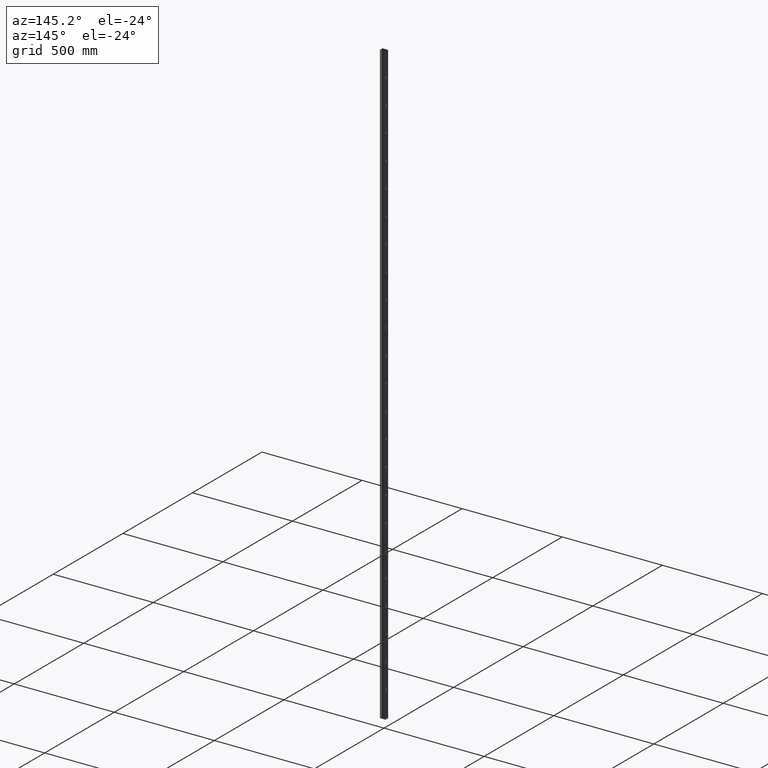
[diagram: clean part render]
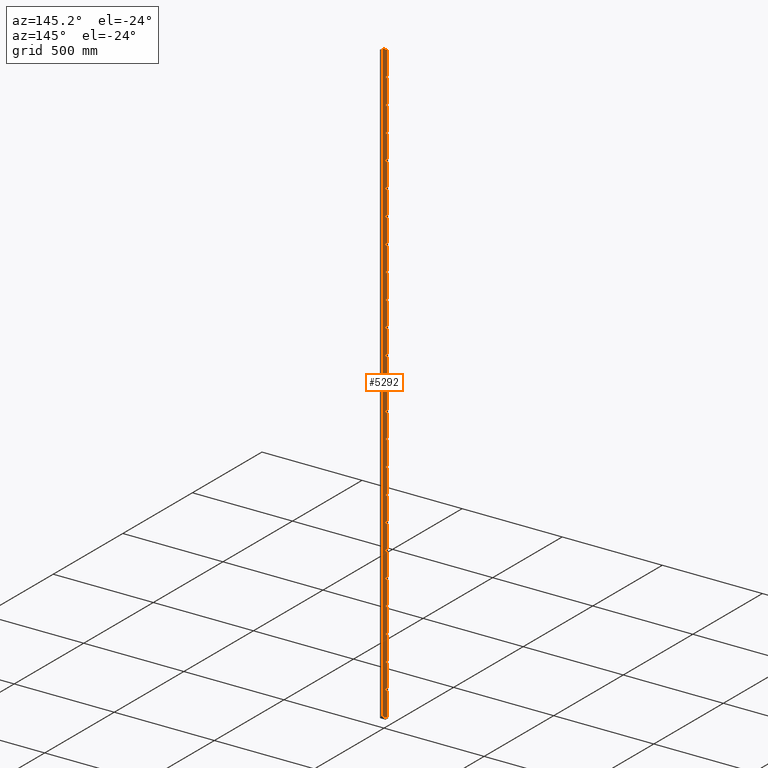
[diagram: same view with one face highlighted and labeled with its STEP entity id]
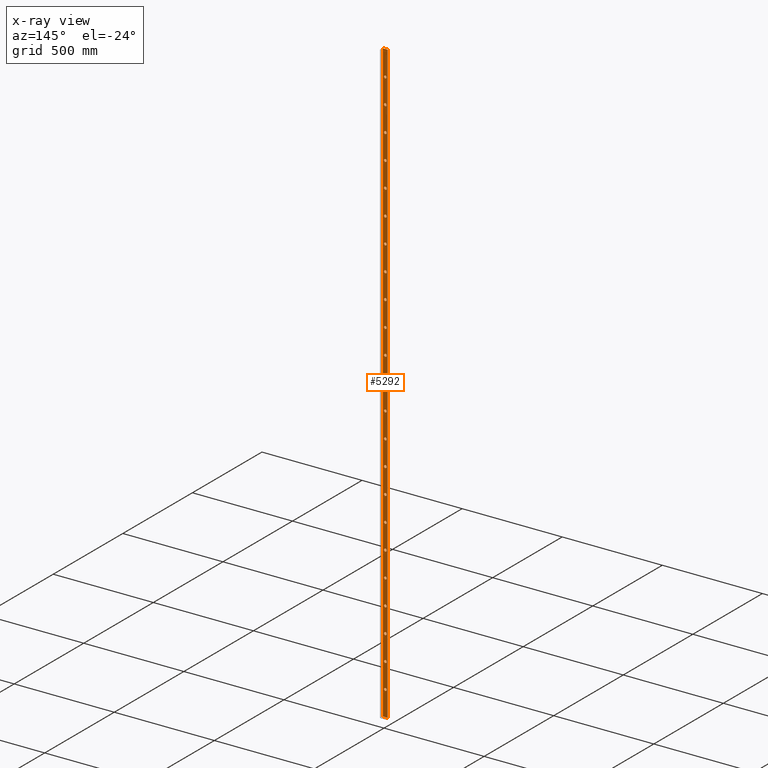
[diagram: x-ray of the same camera — body ghosted, the highlighted face saturated]
A machine part, auxiliary view. The second image highlights one B-rep face of the part: STEP entity #5292.
The next image is the same camera in x-ray: the body ghosted, the highlighted face saturated — about 0% of this face is hidden behind the body in this view.
In plain terms, the highlighted planar face has unit normal (0, -1, 0).
Its self-contained STEP definition (entity closure, byte-faithful):
#17 = EDGE_LOOP ( 'NONE', ( #14544 ) ) ;
#97 = CARTESIAN_POINT ( 'NONE',  ( 1.047444401652940017E-11, 10.00000000000000178, 125.0000000000000000 ) ) ;
#144 = DIRECTION ( 'NONE',  ( 0.000000000000000000, 0.000000000000000000, 1.000000000000000000 ) ) ;
#157 = DIRECTION ( 'NONE',  ( 0.000000000000000000, 0.000000000000000000, 1.000000000000000000 ) ) ;
#161 = VECTOR ( 'NONE', #14068, 1000.000000000000000 ) ;
#194 = CARTESIAN_POINT ( 'NONE',  ( 9.165138514463224540E-12, 10.00000000000000178, -250.0000000000000000 ) ) ;
#247 = DIRECTION ( 'NONE',  ( 0.000000000000000000, 1.000000000000000000, 0.000000000000000000 ) ) ;
#295 = FACE_BOUND ( 'NONE', #11102, .T. ) ;
#353 = DIRECTION ( 'NONE',  ( 0.000000000000000000, 1.000000000000000000, 0.000000000000000000 ) ) ;
#402 = ORIENTED_EDGE ( 'NONE', *, *, #13773, .F. ) ;
#432 = ORIENTED_EDGE ( 'NONE', *, *, #8594, .F. ) ;
#540 = CARTESIAN_POINT ( 'NONE',  ( 1.265661985330635901E-11, 10.00000000000000178, 750.0000000000000000 ) ) ;
#551 = CARTESIAN_POINT ( 'NONE',  ( 6.982962677686266509E-12, 10.00000000000000178, -868.5000000000000000 ) ) ;
#662 = VERTEX_POINT ( 'NONE', #4116 ) ;
#724 = AXIS2_PLACEMENT_3D ( 'NONE', #740, #6455, #5303 ) ;
#740 = CARTESIAN_POINT ( 'NONE',  ( 1.003800884917400775E-11, 10.00000000000000178, 0.000000000000000000 ) ) ;
#858 = CARTESIAN_POINT ( 'NONE',  ( 9.601573681818616954E-12, 10.00000000000000178, -125.0000000000000000 ) ) ;
#866 = CARTESIAN_POINT ( 'NONE',  ( 1.352949018801714222E-11, 10.00000000000000178, 1006.500000000000000 ) ) ;
#896 = DIRECTION ( 'NONE',  ( 0.000000000000000000, 1.000000000000000000, 0.000000000000000000 ) ) ;
#916 = VERTEX_POINT ( 'NONE', #866 ) ;
#930 = AXIS2_PLACEMENT_3D ( 'NONE', #11535, #353, #9279 ) ;
#943 = DIRECTION ( 'NONE',  ( 0.000000000000000000, 1.000000000000000000, 0.000000000000000000 ) ) ;
#949 = DIRECTION ( 'NONE',  ( 0.000000000000000000, 0.000000000000000000, 1.000000000000000000 ) ) ;
#990 = EDGE_LOOP ( 'NONE', ( #4304 ) ) ;
#1047 = AXIS2_PLACEMENT_3D ( 'NONE', #14168, #6496, #7629 ) ;
#1181 = CARTESIAN_POINT ( 'NONE',  ( -12.00000000000001421, 10.00000000000000178, 1500.000000000000000 ) ) ;
#1209 = FACE_BOUND ( 'NONE', #4515, .T. ) ;
#1223 = CIRCLE ( 'NONE', #4036, 6.499999999999728217 ) ;
#1224 = DIRECTION ( 'NONE',  ( -1.000000000000000000, -0.000000000000000000, -0.000000000000000000 ) ) ;
#1239 = DIRECTION ( 'NONE',  ( 0.000000000000000000, 0.000000000000000000, 1.000000000000000000 ) ) ;
#1242 = AXIS2_PLACEMENT_3D ( 'NONE', #9067, #4592, #11464 ) ;
#1550 = FACE_BOUND ( 'NONE', #9727, .T. ) ;
#1632 = VERTEX_POINT ( 'NONE', #2842 ) ;
#1709 = DIRECTION ( 'NONE',  ( 0.000000000000000000, 1.000000000000000000, 0.000000000000000000 ) ) ;
#1899 = FACE_BOUND ( 'NONE', #5653, .T. ) ;
#1934 = VERTEX_POINT ( 'NONE', #551 ) ;
#1988 = VERTEX_POINT ( 'NONE', #3972 ) ;
#2014 = CARTESIAN_POINT ( 'NONE',  ( 1.178374951859557579E-11, 10.00000000000000178, 506.4999999999999432 ) ) ;
#2037 = EDGE_CURVE ( 'NONE', #1934, #1934, #9865, .T. ) ;
#2048 = DIRECTION ( 'NONE',  ( 0.000000000000000000, 0.000000000000000000, 1.000000000000000000 ) ) ;
#2053 = VERTEX_POINT ( 'NONE', #14131 ) ;
#2058 = DIRECTION ( 'NONE',  ( 0.000000000000000000, 1.000000000000000000, 0.000000000000000000 ) ) ;
#2077 = ORIENTED_EDGE ( 'NONE', *, *, #4723, .T. ) ;
#2113 = CIRCLE ( 'NONE', #13162, 6.500000000000005329 ) ;
#2119 = EDGE_CURVE ( 'NONE', #5787, #5787, #5446, .T. ) ;
#2173 = ORIENTED_EDGE ( 'NONE', *, *, #9749, .F. ) ;
#2307 = DIRECTION ( 'NONE',  ( 0.000000000000000000, 1.000000000000000000, 0.000000000000000000 ) ) ;
#2316 = CARTESIAN_POINT ( 'NONE',  ( 11.99999999999998934, 10.00000000000000178, 1500.000000000000000 ) ) ;
#2341 = VERTEX_POINT ( 'NONE', #12901 ) ;
#2395 = AXIS2_PLACEMENT_3D ( 'NONE', #97, #7129, #11747 ) ;
#2504 = EDGE_CURVE ( 'NONE', #662, #662, #5963, .T. ) ;
#2533 = DIRECTION ( 'NONE',  ( 0.000000000000000000, 0.000000000000000000, 1.000000000000000000 ) ) ;
#2608 = FACE_BOUND ( 'NONE', #12069, .T. ) ;
#2664 = EDGE_CURVE ( 'NONE', #11216, #11216, #7210, .T. ) ;
#2732 = ORIENTED_EDGE ( 'NONE', *, *, #6259, .T. ) ;
#2745 = EDGE_LOOP ( 'NONE', ( #3773 ) ) ;
#2815 = DIRECTION ( 'NONE',  ( 0.000000000000000000, 1.000000000000000000, 0.000000000000000000 ) ) ;
#2842 = CARTESIAN_POINT ( 'NONE',  ( 1.483879569008331623E-11, 10.00000000000000178, 1381.499999999999773 ) ) ;
#2895 = CARTESIAN_POINT ( 'NONE',  ( 8.728703347107833742E-12, 10.00000000000000178, -368.5000000000000000 ) ) ;
#2923 = DIRECTION ( 'NONE',  ( 0.000000000000000000, 1.000000000000000000, 0.000000000000000000 ) ) ;
#3029 = AXIS2_PLACEMENT_3D ( 'NONE', #194, #3534, #157 ) ;
#3085 = ORIENTED_EDGE ( 'NONE', *, *, #12172, .F. ) ;
#3185 = AXIS2_PLACEMENT_3D ( 'NONE', #858, #2058, #949 ) ;
#3190 = CARTESIAN_POINT ( 'NONE',  ( 1.047444401652940017E-11, 10.00000000000000178, 131.4999999999999432 ) ) ;
#3339 = EDGE_CURVE ( 'NONE', #12623, #12623, #2113, .T. ) ;
#3353 = CIRCLE ( 'NONE', #13649, 6.499999999999839240 ) ;
#3418 = DIRECTION ( 'NONE',  ( 0.000000000000000000, 0.000000000000000000, 1.000000000000000000 ) ) ;
#3534 = DIRECTION ( 'NONE',  ( 0.000000000000000000, 1.000000000000000000, 0.000000000000000000 ) ) ;
#3558 = EDGE_CURVE ( 'NONE', #8718, #10421, #12995, .T. ) ;
#3675 = CIRCLE ( 'NONE', #9497, 6.499999999999950262 ) ;
#3761 = VERTEX_POINT ( 'NONE', #7099 ) ;
#3773 = ORIENTED_EDGE ( 'NONE', *, *, #2664, .F. ) ;
#3800 = EDGE_CURVE ( 'NONE', #4338, #4338, #3353, .T. ) ;
#3830 = FACE_BOUND ( 'NONE', #13633, .T. ) ;
#3888 = AXIS2_PLACEMENT_3D ( 'NONE', #9532, #2815, #5801 ) ;
#3921 = CARTESIAN_POINT ( 'NONE',  ( 6.546527510330874902E-12, 10.00000000000000178, -993.5000000000001137 ) ) ;
#3924 = ORIENTED_EDGE ( 'NONE', *, *, #9558, .F. ) ;
#3928 = ORIENTED_EDGE ( 'NONE', *, *, #3558, .F. ) ;
#3950 = AXIS2_PLACEMENT_3D ( 'NONE', #7635, #896, #2048 ) ;
#3972 = CARTESIAN_POINT ( 'NONE',  ( 1.222018468595096659E-11, 10.00000000000000178, 631.5000000000000000 ) ) ;
#4019 = CARTESIAN_POINT ( 'NONE',  ( 9.601573681818616954E-12, 10.00000000000000178, -118.5000000000000568 ) ) ;
#4036 = AXIS2_PLACEMENT_3D ( 'NONE', #13597, #12374, #12517 ) ;
#4093 = VERTEX_POINT ( 'NONE', #7710 ) ;
#4116 = CARTESIAN_POINT ( 'NONE',  ( 1.134731435124018338E-11, 10.00000000000000178, 381.5000000000000000 ) ) ;
#4128 = ORIENTED_EDGE ( 'NONE', *, *, #2037, .F. ) ;
#4177 = FACE_BOUND ( 'NONE', #10087, .T. ) ;
#4265 = ORIENTED_EDGE ( 'NONE', *, *, #8980, .F. ) ;
#4304 = ORIENTED_EDGE ( 'NONE', *, *, #12926, .F. ) ;
#4338 = VERTEX_POINT ( 'NONE', #3921 ) ;
#4444 = ORIENTED_EDGE ( 'NONE', *, *, #5799, .F. ) ;
#4477 = VERTEX_POINT ( 'NONE', #8672 ) ;
#4515 = EDGE_LOOP ( 'NONE', ( #12195 ) ) ;
#4521 = ORIENTED_EDGE ( 'NONE', *, *, #8311, .F. ) ;
#4531 = FACE_BOUND ( 'NONE', #17, .T. ) ;
#4546 = LINE ( 'NONE', #12422, #5401 ) ;
#4592 = DIRECTION ( 'NONE',  ( 0.000000000000000000, 1.000000000000000000, 0.000000000000000000 ) ) ;
#4616 = VERTEX_POINT ( 'NONE', #3190 ) ;
#4723 = EDGE_CURVE ( 'NONE', #4477, #10421, #4546, .T. ) ;
#4764 = EDGE_CURVE ( 'NONE', #2053, #2053, #11921, .T. ) ;
#4869 = VECTOR ( 'NONE', #12333, 1000.000000000000000 ) ;
#4882 = FACE_BOUND ( 'NONE', #7111, .T. ) ;
#4961 = VERTEX_POINT ( 'NONE', #7413 ) ;
#5085 = CARTESIAN_POINT ( 'NONE',  ( 1.091087918388479097E-11, 10.00000000000000178, 256.5000000000000000 ) ) ;
#5190 = EDGE_CURVE ( 'NONE', #1632, #1632, #1223, .T. ) ;
#5250 = DIRECTION ( 'NONE',  ( 0.000000000000000000, 1.000000000000000000, 0.000000000000000000 ) ) ;
#5292 = ADVANCED_FACE ( 'NONE', ( #11198, #6458, #4531, #13503, #4882, #10345, #7525, #7164, #1550, #13139, #6821, #295, #10669, #1899, #10172, #2608, #4177, #3830, #12627, #7353, #1209, #12080, #12792, #7709 ), #7909, .F. ) ;
#5303 = DIRECTION ( 'NONE',  ( 0.000000000000000000, 0.000000000000000000, 1.000000000000000000 ) ) ;
#5357 = ORIENTED_EDGE ( 'NONE', *, *, #3339, .F. ) ;
#5392 = CIRCLE ( 'NONE', #3888, 6.499999999999950262 ) ;
#5401 = VECTOR ( 'NONE', #1224, 1000.000000000000000 ) ;
#5446 = CIRCLE ( 'NONE', #9767, 6.500000000000005329 ) ;
#5475 = EDGE_CURVE ( 'NONE', #2341, #2341, #12450, .T. ) ;
#5540 = EDGE_LOOP ( 'NONE', ( #4128 ) ) ;
#5580 = CIRCLE ( 'NONE', #930, 6.500000000000005329 ) ;
#5590 = EDGE_CURVE ( 'NONE', #6906, #6906, #3675, .T. ) ;
#5653 = EDGE_LOOP ( 'NONE', ( #4265 ) ) ;
#5690 = EDGE_CURVE ( 'NONE', #4961, #4961, #5580, .T. ) ;
#5734 = DIRECTION ( 'NONE',  ( 0.000000000000000000, -1.000000000000000000, 0.000000000000000000 ) ) ;
#5742 = DIRECTION ( 'NONE',  ( 0.000000000000000000, 1.000000000000000000, 0.000000000000000000 ) ) ;
#5749 = CIRCLE ( 'NONE', #9372, 6.499999999999728217 ) ;
#5787 = VERTEX_POINT ( 'NONE', #5085 ) ;
#5799 = EDGE_CURVE ( 'NONE', #12364, #12364, #11186, .T. ) ;
#5801 = DIRECTION ( 'NONE',  ( 0.000000000000000000, 0.000000000000000000, 1.000000000000000000 ) ) ;
#5963 = CIRCLE ( 'NONE', #6466, 6.500000000000005329 ) ;
#6007 = VERTEX_POINT ( 'NONE', #2014 ) ;
#6017 = ORIENTED_EDGE ( 'NONE', *, *, #5590, .F. ) ;
#6062 = ORIENTED_EDGE ( 'NONE', *, *, #5475, .F. ) ;
#6259 = EDGE_CURVE ( 'NONE', #3761, #4477, #12616, .T. ) ;
#6455 = DIRECTION ( 'NONE',  ( 0.000000000000000000, 1.000000000000000000, 0.000000000000000000 ) ) ;
#6458 = FACE_BOUND ( 'NONE', #14332, .T. ) ;
#6466 = AXIS2_PLACEMENT_3D ( 'NONE', #13658, #8137, #6917 ) ;
#6496 = DIRECTION ( 'NONE',  ( 0.000000000000000000, 1.000000000000000000, 0.000000000000000000 ) ) ;
#6547 = DIRECTION ( 'NONE',  ( 0.000000000000000000, 0.000000000000000000, 1.000000000000000000 ) ) ;
#6573 = EDGE_LOOP ( 'NONE', ( #13848 ) ) ;
#6646 = CARTESIAN_POINT ( 'NONE',  ( 1.396592535537253302E-11, 10.00000000000000178, 1125.000000000000000 ) ) ;
#6716 = EDGE_LOOP ( 'NONE', ( #13768 ) ) ;
#6791 = ORIENTED_EDGE ( 'NONE', *, *, #8687, .F. ) ;
#6821 = FACE_BOUND ( 'NONE', #6716, .T. ) ;
#6906 = VERTEX_POINT ( 'NONE', #11779 ) ;
#6917 = DIRECTION ( 'NONE',  ( 0.000000000000000000, 0.000000000000000000, 1.000000000000000000 ) ) ;
#7099 = CARTESIAN_POINT ( 'NONE',  ( 11.99999999999998934, 10.00000000000000178, 1500.000000000000000 ) ) ;
#7111 = EDGE_LOOP ( 'NONE', ( #6017 ) ) ;
#7129 = DIRECTION ( 'NONE',  ( 0.000000000000000000, 1.000000000000000000, 0.000000000000000000 ) ) ;
#7164 = FACE_BOUND ( 'NONE', #8498, .T. ) ;
#7210 = CIRCLE ( 'NONE', #3185, 6.499999999999950262 ) ;
#7253 = CARTESIAN_POINT ( 'NONE',  ( -12.00000000000001421, 10.00000000000000000, -1500.000000000000000 ) ) ;
#7287 = EDGE_LOOP ( 'NONE', ( #3085 ) ) ;
#7290 = DIRECTION ( 'NONE',  ( 0.000000000000000000, 0.000000000000000000, 1.000000000000000000 ) ) ;
#7353 = FACE_BOUND ( 'NONE', #9968, .T. ) ;
#7413 = CARTESIAN_POINT ( 'NONE',  ( 8.292268179752441328E-12, 10.00000000000000178, -493.5000000000000000 ) ) ;
#7525 = FACE_BOUND ( 'NONE', #12772, .T. ) ;
#7607 = VERTEX_POINT ( 'NONE', #12218 ) ;
#7622 = DIRECTION ( 'NONE',  ( 0.000000000000000000, 1.000000000000000000, 0.000000000000000000 ) ) ;
#7629 = DIRECTION ( 'NONE',  ( 0.000000000000000000, 0.000000000000000000, 1.000000000000000000 ) ) ;
#7635 = CARTESIAN_POINT ( 'NONE',  ( 7.419397845041658115E-12, 10.00000000000000178, -750.0000000000000000 ) ) ;
#7709 = FACE_OUTER_BOUND ( 'NONE', #9058, .T. ) ;
#7710 = CARTESIAN_POINT ( 'NONE',  ( 5.237222008264700891E-12, 10.00000000000000178, -1368.500000000000227 ) ) ;
#7791 = EDGE_LOOP ( 'NONE', ( #13863 ) ) ;
#7796 = VERTEX_POINT ( 'NONE', #8780 ) ;
#7841 = CARTESIAN_POINT ( 'NONE',  ( 1.309305502066174980E-11, 10.00000000000000178, 875.0000000000000000 ) ) ;
#7909 = PLANE ( 'NONE',  #9321 ) ;
#7925 = CIRCLE ( 'NONE', #8580, 6.499999999999728217 ) ;
#8018 = ORIENTED_EDGE ( 'NONE', *, *, #5690, .F. ) ;
#8062 = CIRCLE ( 'NONE', #2395, 6.499999999999950262 ) ;
#8137 = DIRECTION ( 'NONE',  ( 0.000000000000000000, 1.000000000000000000, 0.000000000000000000 ) ) ;
#8185 = CIRCLE ( 'NONE', #9415, 6.499999999999950262 ) ;
#8271 = LINE ( 'NONE', #9597, #8798 ) ;
#8305 = VERTEX_POINT ( 'NONE', #14190 ) ;
#8311 = EDGE_CURVE ( 'NONE', #1988, #1988, #8185, .T. ) ;
#8452 = CARTESIAN_POINT ( 'NONE',  ( 6.982962677686266509E-12, 10.00000000000000178, -875.0000000000000000 ) ) ;
#8498 = EDGE_LOOP ( 'NONE', ( #2173 ) ) ;
#8561 = CIRCLE ( 'NONE', #8676, 6.499999999999728217 ) ;
#8567 = CARTESIAN_POINT ( 'NONE',  ( 6.546527510330874902E-12, 10.00000000000000178, -1000.000000000000000 ) ) ;
#8574 = DIRECTION ( 'NONE',  ( 0.000000000000000000, 1.000000000000000000, 0.000000000000000000 ) ) ;
#8580 = AXIS2_PLACEMENT_3D ( 'NONE', #9216, #247, #2533 ) ;
#8585 = CARTESIAN_POINT ( 'NONE',  ( 1.265661985330635901E-11, 10.00000000000000178, 756.5000000000000000 ) ) ;
#8594 = EDGE_CURVE ( 'NONE', #13763, #13763, #10613, .T. ) ;
#8672 = CARTESIAN_POINT ( 'NONE',  ( 11.99999999999998934, 10.00000000000000178, -1500.000000000000000 ) ) ;
#8676 = AXIS2_PLACEMENT_3D ( 'NONE', #6646, #14518, #3418 ) ;
#8687 = EDGE_CURVE ( 'NONE', #8305, #8305, #13626, .T. ) ;
#8718 = VERTEX_POINT ( 'NONE', #13039 ) ;
#8780 = CARTESIAN_POINT ( 'NONE',  ( 6.110092342975483296E-12, 10.00000000000000178, -1118.500000000000227 ) ) ;
#8798 = VECTOR ( 'NONE', #11572, 1000.000000000000000 ) ;
#8850 = AXIS2_PLACEMENT_3D ( 'NONE', #540, #1709, #9551 ) ;
#8980 = EDGE_CURVE ( 'NONE', #12865, #12865, #13887, .T. ) ;
#9058 = EDGE_LOOP ( 'NONE', ( #2077, #3928, #3924, #2732 ) ) ;
#9067 = CARTESIAN_POINT ( 'NONE',  ( 7.855833012397050529E-12, 10.00000000000000178, -625.0000000000000000 ) ) ;
#9216 = CARTESIAN_POINT ( 'NONE',  ( 6.110092342975483296E-12, 10.00000000000000178, -1125.000000000000000 ) ) ;
#9279 = DIRECTION ( 'NONE',  ( 0.000000000000000000, 0.000000000000000000, 1.000000000000000000 ) ) ;
#9321 = AXIS2_PLACEMENT_3D ( 'NONE', #1181, #5734, #10214 ) ;
#9372 = AXIS2_PLACEMENT_3D ( 'NONE', #10329, #13716, #144 ) ;
#9415 = AXIS2_PLACEMENT_3D ( 'NONE', #13603, #5742, #1239 ) ;
#9447 = CARTESIAN_POINT ( 'NONE',  ( 1.440236052272792382E-11, 10.00000000000000178, 1250.000000000000000 ) ) ;
#9497 = AXIS2_PLACEMENT_3D ( 'NONE', #7841, #943, #6547 ) ;
#9523 = EDGE_CURVE ( 'NONE', #7796, #7796, #7925, .T. ) ;
#9532 = CARTESIAN_POINT ( 'NONE',  ( 1.352949018801714222E-11, 10.00000000000000178, 1000.000000000000000 ) ) ;
#9551 = DIRECTION ( 'NONE',  ( 0.000000000000000000, 0.000000000000000000, 1.000000000000000000 ) ) ;
#9558 = EDGE_CURVE ( 'NONE', #3761, #8718, #8271, .T. ) ;
#9597 = CARTESIAN_POINT ( 'NONE',  ( -12.00000000000001421, 10.00000000000000178, 1500.000000000000000 ) ) ;
#9673 = AXIS2_PLACEMENT_3D ( 'NONE', #8452, #5250, #10700 ) ;
#9727 = EDGE_LOOP ( 'NONE', ( #10104 ) ) ;
#9749 = EDGE_CURVE ( 'NONE', #6007, #6007, #10212, .T. ) ;
#9767 = AXIS2_PLACEMENT_3D ( 'NONE', #14362, #7622, #14513 ) ;
#9780 = CIRCLE ( 'NONE', #13144, 6.499999999999728217 ) ;
#9865 = CIRCLE ( 'NONE', #9673, 6.499999999999950262 ) ;
#9968 = EDGE_LOOP ( 'NONE', ( #14113 ) ) ;
#10083 = VERTEX_POINT ( 'NONE', #14440 ) ;
#10087 = EDGE_LOOP ( 'NONE', ( #12793 ) ) ;
#10104 = ORIENTED_EDGE ( 'NONE', *, *, #2504, .F. ) ;
#10172 = FACE_BOUND ( 'NONE', #12771, .T. ) ;
#10212 = CIRCLE ( 'NONE', #1047, 6.499999999999950262 ) ;
#10214 = DIRECTION ( 'NONE',  ( 0.000000000000000000, -0.000000000000000000, -1.000000000000000000 ) ) ;
#10329 = CARTESIAN_POINT ( 'NONE',  ( 5.237222008264700891E-12, 10.00000000000000178, -1375.000000000000000 ) ) ;
#10345 = FACE_BOUND ( 'NONE', #13670, .T. ) ;
#10421 = VERTEX_POINT ( 'NONE', #7253 ) ;
#10493 = CARTESIAN_POINT ( 'NONE',  ( -12.00000000000001421, 10.00000000000000000, 1500.000000000000000 ) ) ;
#10613 = CIRCLE ( 'NONE', #8850, 6.499999999999950262 ) ;
#10669 = FACE_BOUND ( 'NONE', #2745, .T. ) ;
#10700 = DIRECTION ( 'NONE',  ( 0.000000000000000000, 0.000000000000000000, 1.000000000000000000 ) ) ;
#11102 = EDGE_LOOP ( 'NONE', ( #6062 ) ) ;
#11124 = CARTESIAN_POINT ( 'NONE',  ( 8.728703347107833742E-12, 10.00000000000000178, -375.0000000000000000 ) ) ;
#11186 = CIRCLE ( 'NONE', #3950, 6.499999999999950262 ) ;
#11198 = FACE_BOUND ( 'NONE', #6573, .T. ) ;
#11216 = VERTEX_POINT ( 'NONE', #4019 ) ;
#11403 = AXIS2_PLACEMENT_3D ( 'NONE', #14224, #8574, #13090 ) ;
#11464 = DIRECTION ( 'NONE',  ( 0.000000000000000000, 0.000000000000000000, 1.000000000000000000 ) ) ;
#11535 = CARTESIAN_POINT ( 'NONE',  ( 8.292268179752441328E-12, 10.00000000000000178, -500.0000000000000000 ) ) ;
#11572 = DIRECTION ( 'NONE',  ( -1.000000000000000000, -0.000000000000000000, -0.000000000000000000 ) ) ;
#11747 = DIRECTION ( 'NONE',  ( 0.000000000000000000, 0.000000000000000000, 1.000000000000000000 ) ) ;
#11779 = CARTESIAN_POINT ( 'NONE',  ( 1.309305502066174980E-11, 10.00000000000000178, 881.5000000000000000 ) ) ;
#11921 = CIRCLE ( 'NONE', #1242, 6.499999999999950262 ) ;
#12020 = CARTESIAN_POINT ( 'NONE',  ( 9.165138514463224540E-12, 10.00000000000000178, -243.5000000000000284 ) ) ;
#12069 = EDGE_LOOP ( 'NONE', ( #8018 ) ) ;
#12080 = FACE_BOUND ( 'NONE', #14320, .T. ) ;
#12172 = EDGE_CURVE ( 'NONE', #916, #916, #5392, .T. ) ;
#12195 = ORIENTED_EDGE ( 'NONE', *, *, #9523, .F. ) ;
#12218 = CARTESIAN_POINT ( 'NONE',  ( 1.440236052272792382E-11, 10.00000000000000178, 1256.499999999999773 ) ) ;
#12333 = DIRECTION ( 'NONE',  ( -0.000000000000000000, -0.000000000000000000, -1.000000000000000000 ) ) ;
#12364 = VERTEX_POINT ( 'NONE', #13102 ) ;
#12374 = DIRECTION ( 'NONE',  ( 0.000000000000000000, 1.000000000000000000, 0.000000000000000000 ) ) ;
#12422 = CARTESIAN_POINT ( 'NONE',  ( -12.00000000000001421, 10.00000000000000178, -1500.000000000000000 ) ) ;
#12450 = CIRCLE ( 'NONE', #724, 6.499999999999968914 ) ;
#12517 = DIRECTION ( 'NONE',  ( 0.000000000000000000, 0.000000000000000000, 1.000000000000000000 ) ) ;
#12587 = EDGE_CURVE ( 'NONE', #10083, #10083, #8561, .T. ) ;
#12616 = LINE ( 'NONE', #2316, #4869 ) ;
#12623 = VERTEX_POINT ( 'NONE', #2895 ) ;
#12627 = FACE_BOUND ( 'NONE', #5540, .T. ) ;
#12666 = EDGE_CURVE ( 'NONE', #4616, #4616, #8062, .T. ) ;
#12771 = EDGE_LOOP ( 'NONE', ( #5357 ) ) ;
#12772 = EDGE_LOOP ( 'NONE', ( #4521 ) ) ;
#12792 = FACE_BOUND ( 'NONE', #990, .T. ) ;
#12793 = ORIENTED_EDGE ( 'NONE', *, *, #4764, .F. ) ;
#12865 = VERTEX_POINT ( 'NONE', #12020 ) ;
#12901 = CARTESIAN_POINT ( 'NONE',  ( 1.003800884917400775E-11, 10.00000000000000178, 6.499999999999968914 ) ) ;
#12926 = EDGE_CURVE ( 'NONE', #4093, #4093, #5749, .T. ) ;
#12995 = LINE ( 'NONE', #10493, #161 ) ;
#13039 = CARTESIAN_POINT ( 'NONE',  ( -12.00000000000001421, 10.00000000000000000, 1500.000000000000000 ) ) ;
#13090 = DIRECTION ( 'NONE',  ( 0.000000000000000000, 0.000000000000000000, 1.000000000000000000 ) ) ;
#13102 = CARTESIAN_POINT ( 'NONE',  ( 7.419397845041658115E-12, 10.00000000000000178, -743.5000000000000000 ) ) ;
#13139 = FACE_BOUND ( 'NONE', #7791, .T. ) ;
#13144 = AXIS2_PLACEMENT_3D ( 'NONE', #9447, #2923, #13913 ) ;
#13162 = AXIS2_PLACEMENT_3D ( 'NONE', #11124, #2307, #14547 ) ;
#13503 = FACE_BOUND ( 'NONE', #7287, .T. ) ;
#13597 = CARTESIAN_POINT ( 'NONE',  ( 1.483879569008331623E-11, 10.00000000000000178, 1375.000000000000000 ) ) ;
#13603 = CARTESIAN_POINT ( 'NONE',  ( 1.222018468595096659E-11, 10.00000000000000178, 625.0000000000000000 ) ) ;
#13626 = CIRCLE ( 'NONE', #11403, 6.499999999999728217 ) ;
#13633 = EDGE_LOOP ( 'NONE', ( #4444 ) ) ;
#13649 = AXIS2_PLACEMENT_3D ( 'NONE', #8567, #14065, #7290 ) ;
#13658 = CARTESIAN_POINT ( 'NONE',  ( 1.134731435124018338E-11, 10.00000000000000178, 375.0000000000000000 ) ) ;
#13670 = EDGE_LOOP ( 'NONE', ( #432 ) ) ;
#13716 = DIRECTION ( 'NONE',  ( 0.000000000000000000, 1.000000000000000000, 0.000000000000000000 ) ) ;
#13763 = VERTEX_POINT ( 'NONE', #8585 ) ;
#13768 = ORIENTED_EDGE ( 'NONE', *, *, #12666, .F. ) ;
#13773 = EDGE_CURVE ( 'NONE', #7607, #7607, #9780, .T. ) ;
#13848 = ORIENTED_EDGE ( 'NONE', *, *, #5190, .F. ) ;
#13863 = ORIENTED_EDGE ( 'NONE', *, *, #2119, .F. ) ;
#13887 = CIRCLE ( 'NONE', #3029, 6.499999999999977796 ) ;
#13913 = DIRECTION ( 'NONE',  ( 0.000000000000000000, 0.000000000000000000, 1.000000000000000000 ) ) ;
#14065 = DIRECTION ( 'NONE',  ( 0.000000000000000000, 1.000000000000000000, 0.000000000000000000 ) ) ;
#14068 = DIRECTION ( 'NONE',  ( -0.000000000000000000, -0.000000000000000000, -1.000000000000000000 ) ) ;
#14113 = ORIENTED_EDGE ( 'NONE', *, *, #3800, .F. ) ;
#14131 = CARTESIAN_POINT ( 'NONE',  ( 7.855833012397050529E-12, 10.00000000000000178, -618.5000000000000000 ) ) ;
#14168 = CARTESIAN_POINT ( 'NONE',  ( 1.178374951859557579E-11, 10.00000000000000178, 500.0000000000000000 ) ) ;
#14190 = CARTESIAN_POINT ( 'NONE',  ( 5.673657175620091690E-12, 10.00000000000000178, -1243.500000000000227 ) ) ;
#14224 = CARTESIAN_POINT ( 'NONE',  ( 5.673657175620091690E-12, 10.00000000000000178, -1250.000000000000000 ) ) ;
#14320 = EDGE_LOOP ( 'NONE', ( #6791 ) ) ;
#14332 = EDGE_LOOP ( 'NONE', ( #402 ) ) ;
#14362 = CARTESIAN_POINT ( 'NONE',  ( 1.091087918388479097E-11, 10.00000000000000178, 250.0000000000000000 ) ) ;
#14440 = CARTESIAN_POINT ( 'NONE',  ( 1.396592535537253302E-11, 10.00000000000000178, 1131.499999999999773 ) ) ;
#14513 = DIRECTION ( 'NONE',  ( 0.000000000000000000, 0.000000000000000000, 1.000000000000000000 ) ) ;
#14518 = DIRECTION ( 'NONE',  ( 0.000000000000000000, 1.000000000000000000, 0.000000000000000000 ) ) ;
#14544 = ORIENTED_EDGE ( 'NONE', *, *, #12587, .F. ) ;
#14547 = DIRECTION ( 'NONE',  ( 0.000000000000000000, 0.000000000000000000, 1.000000000000000000 ) ) ;